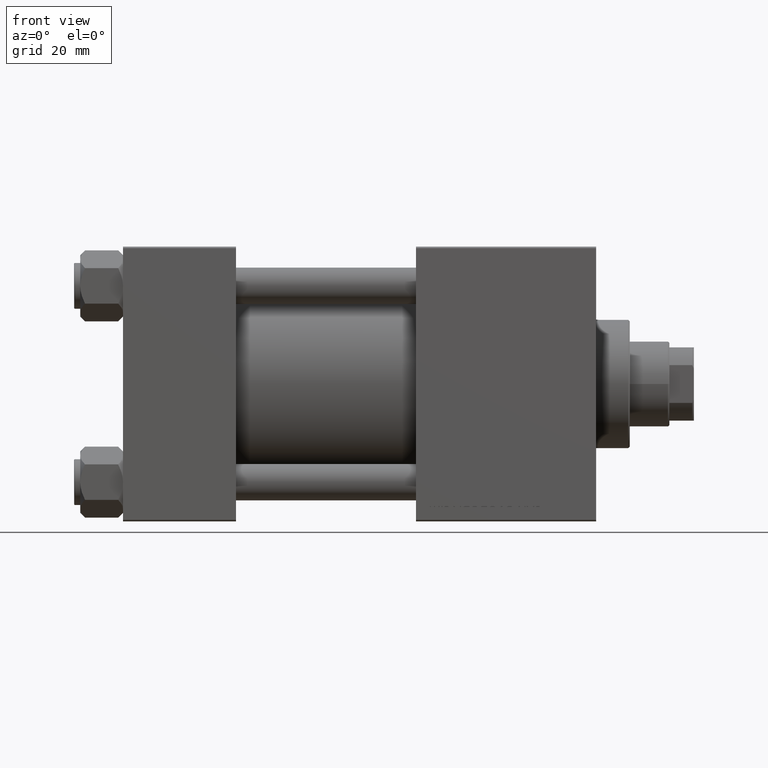
[diagram: clean part render]
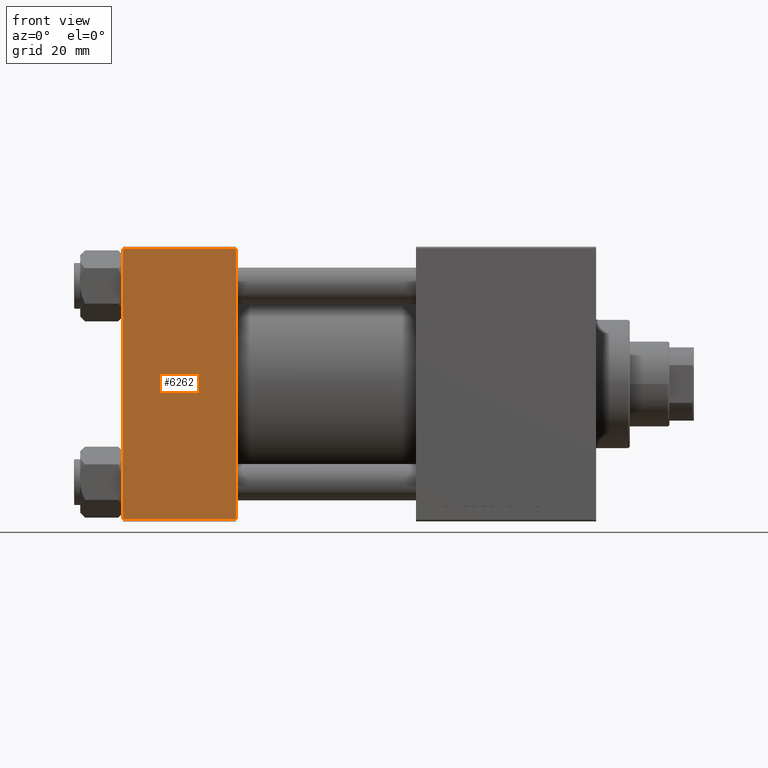
[diagram: same view with one face highlighted and labeled with its STEP entity id]
A machine part, front view. The second image highlights one B-rep face of the part: STEP entity #6262.
In plain terms, the highlighted planar face has unit normal (0, 1, 0).
Its self-contained STEP definition (entity closure, byte-faithful):
#345 = DIRECTION ( 'NONE',  ( 1.000000000000000000, 0.000000000000000000, 0.000000000000000000 ) ) ;
#2755 = AXIS2_PLACEMENT_3D ( 'NONE', #36430, #44805, #21935 ) ;
#3115 = VERTEX_POINT ( 'NONE', #9234 ) ;
#3942 = LINE ( 'NONE', #45595, #48082 ) ;
#5440 = VECTOR ( 'NONE', #345, 1000.000000000000000 ) ;
#6262 = ADVANCED_FACE ( 'NONE', ( #45055 ), #33128, .F. ) ;
#6458 = LINE ( 'NONE', #17905, #18478 ) ;
#6985 = DIRECTION ( 'NONE',  ( 0.000000000000000000, 7.709882115452476934E-17, -1.000000000000000000 ) ) ;
#9234 = CARTESIAN_POINT ( 'NONE',  ( 0.000000000000000000, -45.00000000000000711, 44.49999999999997158 ) ) ;
#12001 = EDGE_LOOP ( 'NONE', ( #48812, #48753, #45014, #17287 ) ) ;
#12070 = VECTOR ( 'NONE', #18543, 1000.000000000000000 ) ;
#12350 = CARTESIAN_POINT ( 'NONE',  ( 37.00000000000000000, -45.00000000000000000, -44.49999999999995737 ) ) ;
#14003 = CARTESIAN_POINT ( 'NONE',  ( 0.000000000000000000, -45.00000000000000000, -44.49999999999995737 ) ) ;
#17287 = ORIENTED_EDGE ( 'NONE', *, *, #44188, .T. ) ;
#17558 = EDGE_CURVE ( 'NONE', #23523, #30881, #34883, .T. ) ;
#17905 = CARTESIAN_POINT ( 'NONE',  ( 37.00000000000000000, -45.00000000000000711, 45.00000000000000000 ) ) ;
#18478 = VECTOR ( 'NONE', #22201, 1000.000000000000000 ) ;
#18543 = DIRECTION ( 'NONE',  ( -1.000000000000000000, 0.000000000000000000, 0.000000000000000000 ) ) ;
#21935 = DIRECTION ( 'NONE',  ( 0.000000000000000000, -7.709882115452478166E-17, 1.000000000000000000 ) ) ;
#22145 = EDGE_CURVE ( 'NONE', #3115, #23523, #3942, .T. ) ;
#22201 = DIRECTION ( 'NONE',  ( 0.000000000000000000, 7.709882115452476934E-17, -1.000000000000000000 ) ) ;
#23523 = VERTEX_POINT ( 'NONE', #14003 ) ;
#27998 = VERTEX_POINT ( 'NONE', #31534 ) ;
#30881 = VERTEX_POINT ( 'NONE', #12350 ) ;
#31081 = CARTESIAN_POINT ( 'NONE',  ( 37.00000000000000000, -45.00000000000000000, -44.49999999999998579 ) ) ;
#31534 = CARTESIAN_POINT ( 'NONE',  ( 37.00000000000000000, -45.00000000000000711, 44.49999999999997158 ) ) ;
#33128 = PLANE ( 'NONE',  #2755 ) ;
#33531 = CARTESIAN_POINT ( 'NONE',  ( 37.00000000000000000, -45.00000000000000711, 44.49999999999997158 ) ) ;
#34883 = LINE ( 'NONE', #31081, #5440 ) ;
#36430 = CARTESIAN_POINT ( 'NONE',  ( 37.00000000000000000, -45.00000000000000711, 45.00000000000000000 ) ) ;
#37329 = LINE ( 'NONE', #33531, #12070 ) ;
#42788 = EDGE_CURVE ( 'NONE', #27998, #30881, #6458, .T. ) ;
#44188 = EDGE_CURVE ( 'NONE', #27998, #3115, #37329, .T. ) ;
#44805 = DIRECTION ( 'NONE',  ( -0.000000000000000000, 1.000000000000000000, 7.709882115452478166E-17 ) ) ;
#45014 = ORIENTED_EDGE ( 'NONE', *, *, #42788, .F. ) ;
#45055 = FACE_OUTER_BOUND ( 'NONE', #12001, .T. ) ;
#45595 = CARTESIAN_POINT ( 'NONE',  ( 0.000000000000000000, -45.00000000000000711, 45.00000000000000000 ) ) ;
#48082 = VECTOR ( 'NONE', #6985, 1000.000000000000000 ) ;
#48753 = ORIENTED_EDGE ( 'NONE', *, *, #17558, .T. ) ;
#48812 = ORIENTED_EDGE ( 'NONE', *, *, #22145, .T. ) ;